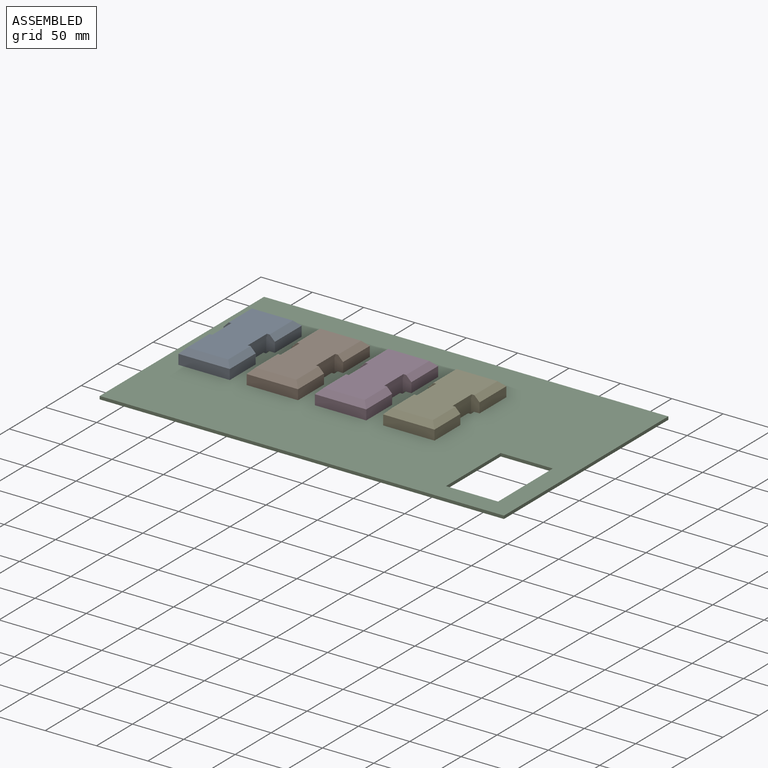
[diagram: assembled view]
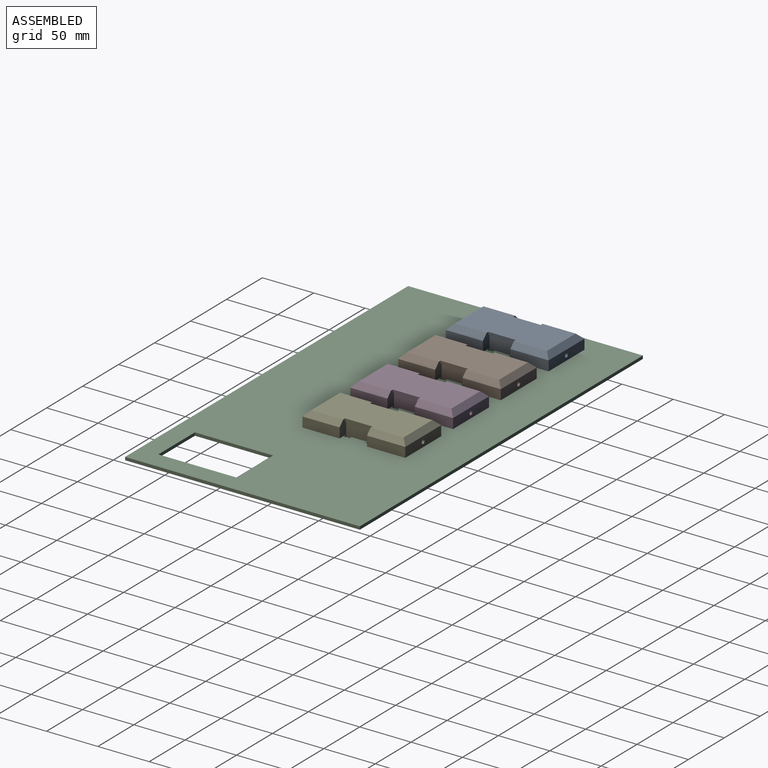
[diagram: assembled view, second angle]
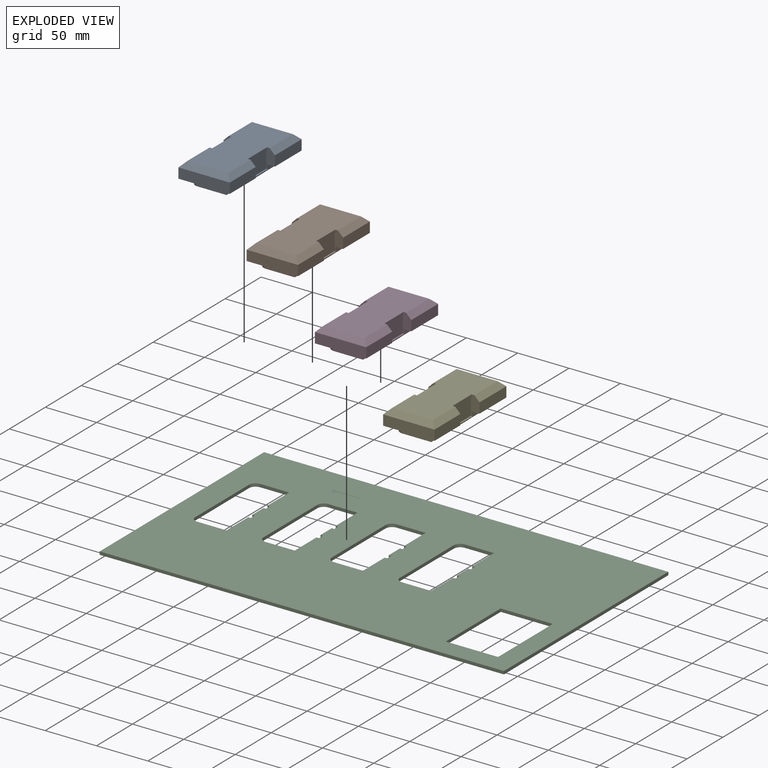
[diagram: exploded view]
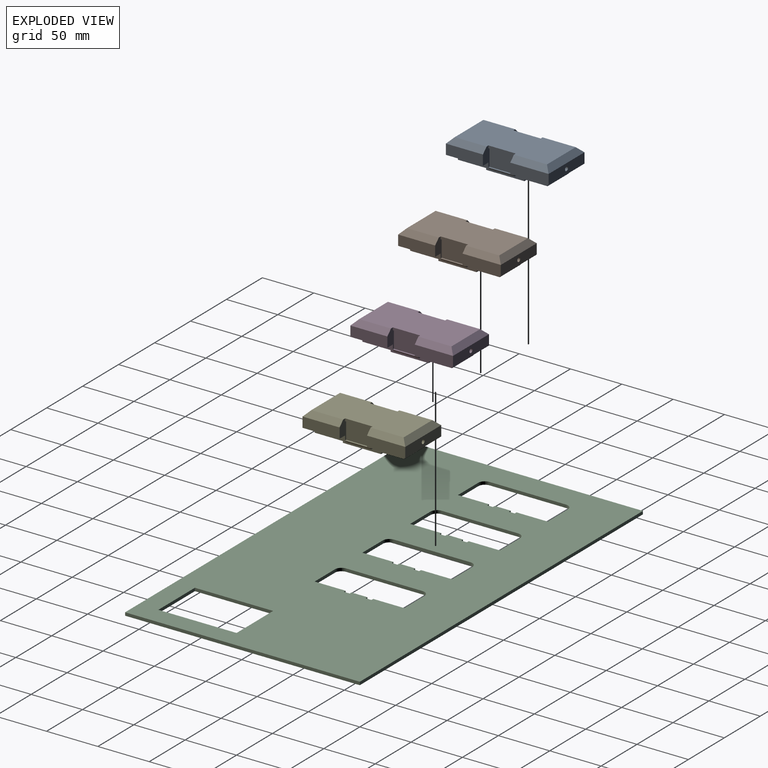
[diagram: exploded view, second angle]
ASSEMBLY  parts=5 mates=4
PART A: 67 faces, bbox 50x100x25.5 mm
  f0: plane 34.7x29.69mm, normal (0,0,-1), area 304.8mm2, adj f2,f5,f7,f14,f15,f19,f51,f56
  f1: plane 34.7x30.93mm, normal (0,0,-1), area 313.4mm2, adj f3,f8,f11,f12,f13,f18,f50,f55
  f2: plane 20.5x13.65mm, normal (0,1,0), area 172.3mm2, adj f0,f4,f5,f22,f26,f27,f33,f37
  f3: plane 20.5x13.65mm, normal (0,-1,0), area 172.3mm2, adj f1,f4,f11,f17,f23,f26,f29,f37
  f4: plane 26.63x18.5mm, normal (1,0,0), area 460.7mm2, adj f2,f3,f26,f34,f36,f38,f46
  f5: plane 29.69x5.5mm, normal (1,0,0), area 163.3mm2, adj f0,f2,f15,f27
  f6: plane 26.63x18.5mm, normal (-1,0,0), area 460.7mm2, adj f18,f19,f26,f40,f42,f43,f44
  f7: plane 23.34x5.5mm, normal (-1,0,0), area 128.4mm2, adj f0,f14,f19,f27
  f8: plane 24.58x5.5mm, normal (-1,0,0), area 135.2mm2, adj f1,f13,f17,f18
  f9: plane 37.24x4.18mm, normal (0,0,-1), area 155.8mm2, adj f41,f53,f54,f64
  f10: plane 24.63x2mm, normal (0,0,-1), area 49.3mm2, adj f34,f35,f36,f49
  f11: plane 30.93x5.5mm, normal (1,0,0), area 170.1mm2, adj f1,f3,f12,f17
  f12: plane 28.35x5.5mm, normal (0,1,0), area 155.9mm2, adj f1,f11,f13,f17
  f13: cylinder r=6.35mm len=6.35mm, axis (0,0,1), area 54.9mm2, adj f1,f8,f12,f17
  f14: cylinder r=6.35mm len=6.35mm, axis (0,0,1), area 54.9mm2, adj f0,f7,f15,f27
  f15: plane 28.35x5.5mm, normal (0,-1,0), area 155.9mm2, adj f0,f5,f14,f27
  f16: plane 24.63x2mm, normal (0,0,-1), area 49.3mm2, adj f39,f40,f42,f48
  f17: plane 50x37.3mm, normal (0,0,-1), area 800.6mm2, adj f3,f8,f11,f12,f13,f18,f23,f24
  f18: plane 20.5x13.65mm, normal (0,-1,0), area 172.3mm2, adj f1,f6,f8,f17,f25,f26,f28,f41
  f19: plane 20.5x13.65mm, normal (0,1,0), area 172.3mm2, adj f0,f6,f7,f20,f26,f27,f31,f41
  f20: plane 36.07x9.92mm, normal (-1,0,0), area 357.8mm2, adj f19,f21,f27,f31
  f21: plane 50x9.92mm, normal (0,-1,0), area 496mm2, adj f20,f22,f27,f32
  f22: plane 36.07x9.92mm, normal (1,0,0), area 357.8mm2, adj f2,f21,f27,f33
  f23: plane 37.3x9.92mm, normal (1,0,0), area 370mm2, adj f3,f17,f24,f29
  f24: plane 50x9.92mm, normal (0,1,0), area 483.4mm2, adj f17,f23,f25,f30,f66
  f25: plane 37.3x9.92mm, normal (-1,0,0), area 370mm2, adj f17,f18,f24,f28
  f26: plane 89.84x39.84mm, normal (0,0,1), area 3442.3mm2, adj f2,f3,f4,f6,f18,f19,f28,f29
  f27: plane 50x36.07mm, normal (0,0,-1), area 781.7mm2, adj f2,f5,f7,f14,f15,f19,f20,f21
  f28: plane 37.3x5.08mm, normal (-0.71,0,0.71), area 249.7mm2, adj f18,f25,f26,f30
  f29: plane 37.3x5.08mm, normal (0.71,0,0.71), area 249.7mm2, adj f3,f23,f26,f30
  f30: plane 50x5.08mm, normal (0,0.71,0.71), area 322.7mm2, adj f24,f26,f28,f29
  f31: plane 36.07x5.08mm, normal (-0.71,0,0.71), area 240.9mm2, adj f19,f20,f26,f32
  f32: plane 50x5.08mm, normal (0,-0.71,0.71), area 322.7mm2, adj f21,f26,f31,f33
  f33: plane 36.07x5.08mm, normal (0.71,0,0.71), area 240.9mm2, adj f2,f22,f26,f32
  f34: plane 18x3.5mm, normal (0,1,0), area 37.9mm2, adj f4,f10,f35,f38,f46,f47,f49
  f35: plane 24.63x18mm, normal (-1,0,0), area 443.4mm2, adj f10,f34,f36,f38
  f36: plane 18x3.5mm, normal (0,-1,0), area 37.9mm2, adj f4,f10,f35,f38,f46,f47,f49
  f37: plane 37.24x23mm, normal (1,0,0), area 824.7mm2, adj f2,f3,f38,f52,f60,f61,f65
  f38: plane 26.63x6mm, normal (0,0,-1), area 110.5mm2, adj f2,f3,f4,f34,f35,f36,f37
  f39: plane 24.63x18mm, normal (1,0,0), area 443.4mm2, adj f16,f40,f42,f43
  f40: plane 18x3.5mm, normal (0,1,0), area 37.9mm2, adj f6,f16,f39,f43,f44,f45,f48
  f41: plane 37.24x18mm, normal (-1,0,0), area 638.5mm2, adj f9,f18,f19,f43,f52,f53,f64
  f42: plane 18x3.5mm, normal (0,-1,0), area 37.9mm2, adj f6,f16,f39,f43,f44,f45,f48
  f43: plane 26.63x6mm, normal (0,0,-1), area 110.5mm2, adj f6,f18,f19,f39,f40,f41,f42
  f44: plane 24.63x1.5mm, normal (0,0,1), area 37mm2, adj f6,f40,f42,f45
  f45: plane 24.63x0.5mm, normal (-1,0,0), area 12.3mm2, adj f40,f42,f44,f48
  f46: plane 24.63x1.5mm, normal (0,0,1), area 37mm2, adj f4,f34,f36,f47
  f47: plane 24.63x0.5mm, normal (1,0,0), area 12.3mm2, adj f34,f36,f46,f49
  f48: plane 24.63x1.5mm, normal (-0.71,0,-0.71), area 52.3mm2, adj f16,f40,f42,f45
  f49: plane 24.63x1.5mm, normal (0.71,0,-0.71), area 52.3mm2, adj f10,f34,f36,f47
  f50: plane 21.08x15mm, normal (1,0,0), area 316.1mm2, adj f1,f18,f52,f59
  f51: plane 26.19x15mm, normal (-1,0,0), area 392.9mm2, adj f0,f2,f52,f56
  f52: plane 80.25x27.7mm, normal (0,0,-1), area 1760.8mm2, adj f2,f3,f18,f19,f37,f41,f50,f51
  f53: plane 15x4.18mm, normal (0,-1,0), area 62.8mm2, adj f9,f41,f52,f54
  f54: plane 37.24x15mm, normal (1,0,0), area 558.6mm2, adj f9,f52,f53,f64
  f55: plane 27.43x15mm, normal (-1,0,0), area 411.4mm2, adj f1,f3,f52,f62
  f56: plane 21.35x15mm, normal (0,1,0), area 320.2mm2, adj f0,f51,f52,f57
  f57: cylinder r=6.35mm len=15mm, axis (0,0,-1), area 149.6mm2, adj f0,f52,f56,f58
  f58: plane 19.84x15mm, normal (1,0,0), area 297.6mm2, adj f0,f19,f52,f57
  f59: cylinder r=6.35mm len=15mm, axis (0,0,-1), area 149.6mm2, adj f1,f50,f52,f62
  f60: plane 20x4.18mm, normal (0,-1,0), area 83.7mm2, adj f37,f52,f63,f65
  f61: plane 20x4.18mm, normal (0,1,0), area 83.7mm2, adj f37,f52,f63,f65
  f62: plane 21.35x15mm, normal (0,-1,0), area 307.7mm2, adj f1,f52,f55,f59,f66
  f63: plane 37.24x20mm, normal (-1,0,0), area 744.8mm2, adj f52,f60,f61,f65
  f64: plane 15x4.18mm, normal (0,1,0), area 62.8mm2, adj f9,f41,f52,f54
  f65: plane 37.24x4.18mm, normal (0,0,-1), area 155.8mm2, adj f37,f60,f61,f63
  f66: cylinder r=2mm len=9.88mm, axis (0,1,0), area 124.1mm2, adj f24,f62
PART B: same geometry as A
PART C: 66 faces, bbox 393.7x228.6x3 mm
  f0: plane 393.7x3mm, normal (0,-1,0), area 1181.1mm2, adj f1,f63,f64,f65
  f1: plane 228.6x3mm, normal (1,0,0), area 685.8mm2, adj f0,f2,f64,f65
  f2: plane 393.7x3mm, normal (0,1,0), area 1181.1mm2, adj f1,f63,f64,f65
  f3: plane 76.2x3mm, normal (1,0,0), area 228.6mm2, adj f4,f58,f64,f65
  f4: plane 50.8x3mm, normal (0,-1,0), area 152.4mm2, adj f3,f5,f64,f65
  f5: plane 76.2x3mm, normal (-1,0,0), area 228.6mm2, adj f4,f58,f64,f65
  f6: plane 3x2.45mm, normal (0,1,0), area 7.3mm2, adj f7,f59,f64,f65
  f7: plane 15.6x3mm, normal (-1,0,0), area 46.8mm2, adj f6,f8,f64,f65
  f8: plane 3x2.45mm, normal (0,-1,0), area 7.3mm2, adj f7,f9,f64,f65
  f9: plane 5.6x3mm, normal (-1,0,0), area 16.8mm2, adj f8,f10,f64,f65
  f10: plane 3x2.45mm, normal (0,1,0), area 7.3mm2, adj f9,f11,f64,f65
  f11: plane 30.23x3mm, normal (-1,0,0), area 90.7mm2, adj f10,f12,f64,f65
  f12: plane 28.35x3mm, normal (0,1,0), area 85mm2, adj f11,f13,f64,f65
  f13: cylinder r=6.35mm len=6.35mm, axis (0,0,-1), area 29.9mm2, adj f12,f14,f64,f65
  f14: plane 74.55x3mm, normal (1,0,0), area 223.7mm2, adj f13,f15,f64,f65
  f15: cylinder r=6.35mm len=6.35mm, axis (0,0,-1), area 29.9mm2, adj f14,f16,f64,f65
  f16: plane 28.35x3mm, normal (0,-1,0), area 85mm2, adj f15,f17,f64,f65
  f17: plane 30.23x3mm, normal (-1,0,0), area 90.7mm2, adj f16,f18,f64,f65
  f18: plane 3x2.45mm, normal (0,-1,0), area 7.3mm2, adj f17,f59,f64,f65
  f19: plane 3x2.45mm, normal (0,1,0), area 7.3mm2, adj f20,f60,f64,f65
  f20: plane 15.6x3mm, normal (-1,0,0), area 46.8mm2, adj f19,f21,f64,f65
  f21: plane 3x2.45mm, normal (0,-1,0), area 7.3mm2, adj f20,f22,f64,f65
  f22: plane 5.6x3mm, normal (-1,0,0), area 16.8mm2, adj f21,f23,f64,f65
  f23: plane 3x2.45mm, normal (0,1,0), area 7.3mm2, adj f22,f24,f64,f65
  f24: plane 30.23x3mm, normal (-1,0,0), area 90.7mm2, adj f23,f25,f64,f65
  f25: plane 28.35x3mm, normal (0,1,0), area 85mm2, adj f24,f26,f64,f65
  f26: cylinder r=6.35mm len=6.35mm, axis (0,0,-1), area 29.9mm2, adj f25,f27,f64,f65
  f27: plane 74.55x3mm, normal (1,0,0), area 223.7mm2, adj f26,f28,f64,f65
  f28: cylinder r=6.35mm len=6.35mm, axis (0,0,-1), area 29.9mm2, adj f27,f29,f64,f65
  f29: plane 28.35x3mm, normal (0,-1,0), area 85mm2, adj f28,f30,f64,f65
  f30: plane 30.23x3mm, normal (-1,0,0), area 90.7mm2, adj f29,f31,f64,f65
  f31: plane 3x2.45mm, normal (0,-1,0), area 7.3mm2, adj f30,f60,f64,f65
  f32: plane 3x2.45mm, normal (0,1,0), area 7.4mm2, adj f33,f61,f64,f65
  f33: plane 15.6x3mm, normal (-1,0,0), area 46.8mm2, adj f32,f34,f64,f65
  f34: plane 3x2.45mm, normal (0,-1,0), area 7.4mm2, adj f33,f35,f64,f65
  f35: plane 5.6x3mm, normal (-1,0,0), area 16.8mm2, adj f34,f36,f64,f65
  f36: plane 3x2.45mm, normal (0,1,0), area 7.4mm2, adj f35,f37,f64,f65
  f37: plane 30.23x3mm, normal (-1,0,0), area 90.7mm2, adj f36,f38,f64,f65
  f38: plane 28.35x3mm, normal (0,1,0), area 85mm2, adj f37,f39,f64,f65
  f39: cylinder r=6.35mm len=6.35mm, axis (0,0,-1), area 29.9mm2, adj f38,f40,f64,f65
  f40: plane 74.55x3mm, normal (1,0,0), area 223.7mm2, adj f39,f41,f64,f65
  f41: cylinder r=6.35mm len=6.35mm, axis (0,0,-1), area 29.9mm2, adj f40,f42,f64,f65
  f42: plane 28.35x3mm, normal (0,-1,0), area 85mm2, adj f41,f43,f64,f65
  f43: plane 30.23x3mm, normal (-1,0,0), area 90.7mm2, adj f42,f44,f64,f65
  f44: plane 3x2.45mm, normal (0,-1,0), area 7.4mm2, adj f43,f61,f64,f65
  f45: plane 30.23x3mm, normal (-1,0,0), area 90.7mm2, adj f46,f62,f64,f65
  f46: plane 3x2.45mm, normal (0,-1,0), area 7.4mm2, adj f45,f47,f64,f65
  f47: plane 5.6x3mm, normal (-1,0,0), area 16.8mm2, adj f46,f48,f64,f65
  f48: plane 3x2.45mm, normal (0,1,0), area 7.4mm2, adj f47,f49,f64,f65
  f49: plane 15.6x3mm, normal (-1,0,0), area 46.8mm2, adj f48,f50,f64,f65
  f50: plane 3x2.45mm, normal (0,-1,0), area 7.4mm2, adj f49,f51,f64,f65
  f51: plane 5.6x3mm, normal (-1,0,0), area 16.8mm2, adj f50,f52,f64,f65
  f52: plane 3x2.45mm, normal (0,1,0), area 7.4mm2, adj f51,f53,f64,f65
  f53: plane 30.23x3mm, normal (-1,0,0), area 90.7mm2, adj f52,f54,f64,f65
  f54: plane 28.35x3mm, normal (0,1,0), area 85mm2, adj f53,f55,f64,f65
  f55: cylinder r=6.35mm len=6.35mm, axis (0,0,-1), area 29.9mm2, adj f54,f56,f64,f65
  f56: plane 74.55x3mm, normal (1,0,0), area 223.7mm2, adj f55,f57,f64,f65
  f57: cylinder r=6.35mm len=6.35mm, axis (0,0,-1), area 29.9mm2, adj f56,f62,f64,f65
  f58: plane 50.8x3mm, normal (0,1,0), area 152.4mm2, adj f3,f5,f64,f65
  f59: plane 5.6x3mm, normal (-1,0,0), area 16.8mm2, adj f6,f18,f64,f65
  f60: plane 5.6x3mm, normal (-1,0,0), area 16.8mm2, adj f19,f31,f64,f65
  f61: plane 5.6x3mm, normal (-1,0,0), area 16.8mm2, adj f32,f44,f64,f65
  f62: plane 28.35x3mm, normal (0,-1,0), area 85mm2, adj f45,f57,f64,f65
  f63: plane 228.6x3mm, normal (-1,0,0), area 685.8mm2, adj f0,f2,f64,f65
  f64: plane 393.7x228.6mm, normal (0,0,1), area 73978mm2, adj f0,f1,f2,f3,f4,f5,f6,f7
  f65: plane 393.7x228.6mm, normal (0,0,-1), area 73978mm2, adj f0,f1,f2,f3,f4,f5,f6,f7
PART D: same geometry as A
PART E: same geometry as A
PLACE A t=(-123.4,-3.2,-1.39)mm
PLACE B t=(-56.95,-3.2,-1.39)mm
PLACE C t=(0.59,-0.99,-4.14)mm fixed
PLACE D t=(9.5,-3.2,-1.39)mm
PLACE E t=(75.95,-3.2,-1.39)mm
MATE slider B.f14 <-> C.f39  axis (0,0,1) through (-98.06,-18.39,-4.14)mm
MATE slider D.f14 <-> C.f26  axis (0,0,1) through (-31.61,-18.39,-4.14)mm
MATE slider E.f14 <-> C.f13  axis (0,0,1) through (34.84,-18.39,-4.14)mm
MATE slider A.f14 <-> C.f55  axis (0,0,1) through (-164.51,-18.39,-4.14)mm
